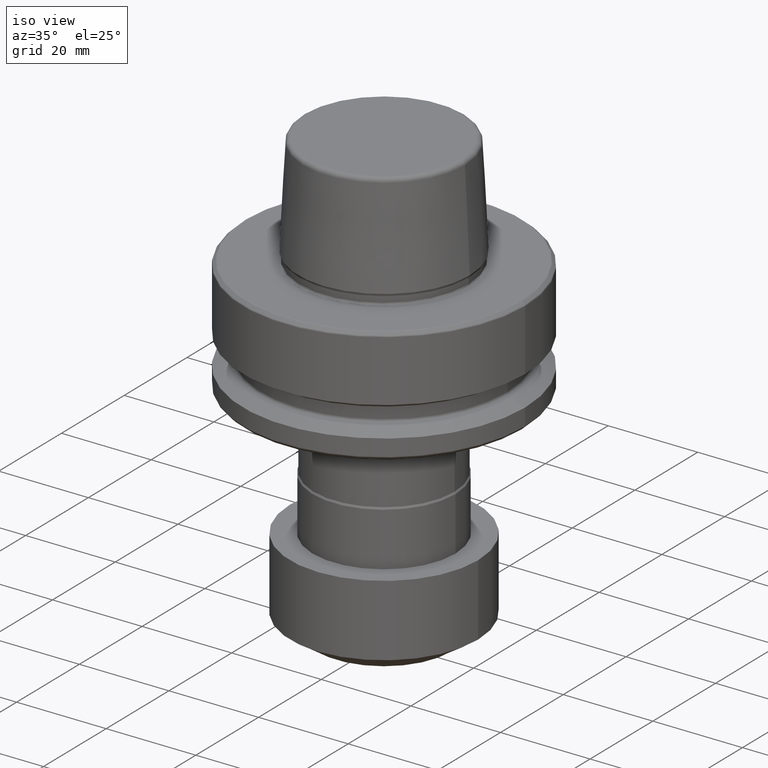
[diagram: clean part render]
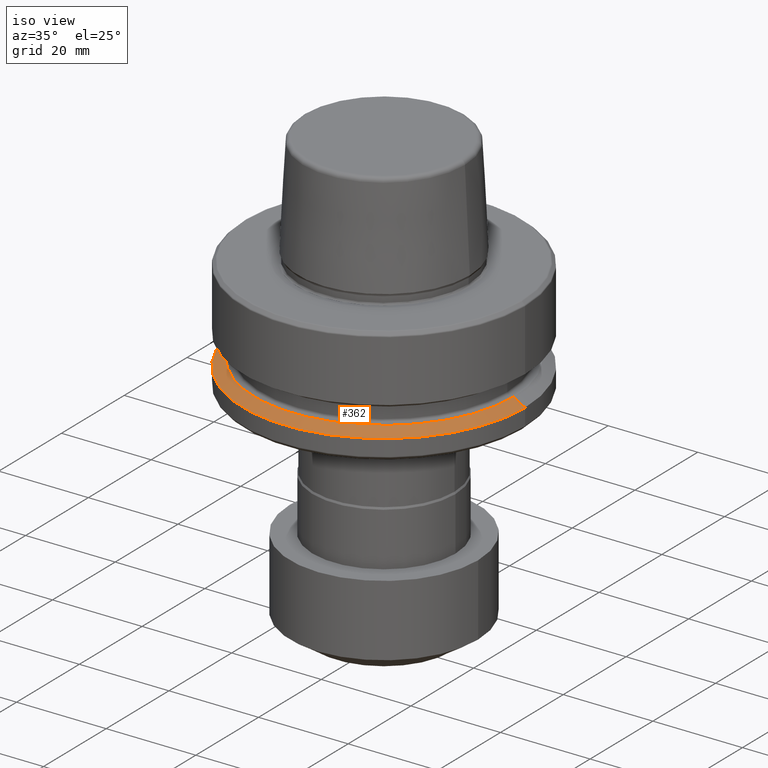
[diagram: same view with one face highlighted and labeled with its STEP entity id]
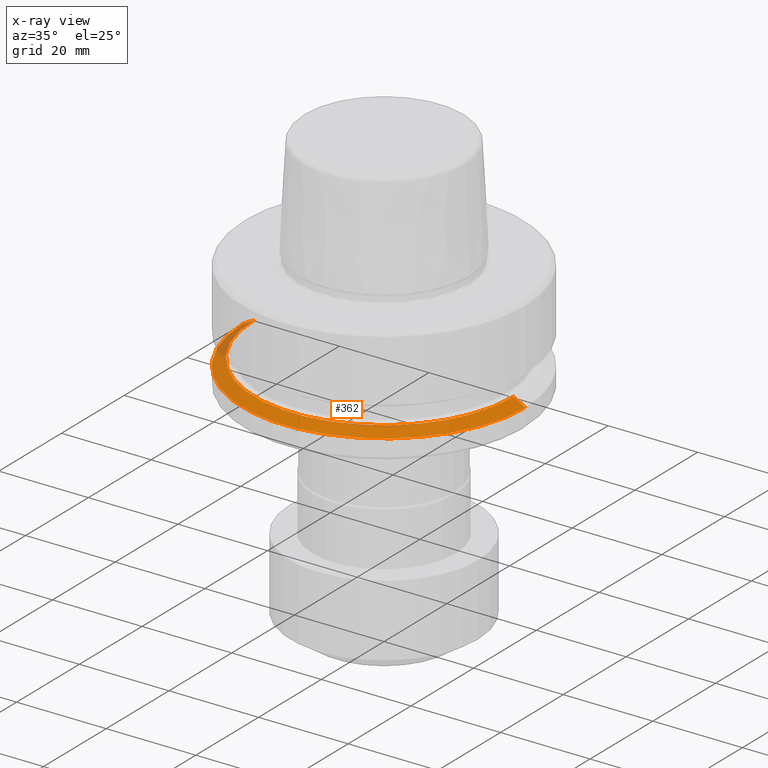
[diagram: x-ray of the same camera — body ghosted, the highlighted face saturated]
A machine part, iso view. The second image highlights one B-rep face of the part: STEP entity #362.
The next image is the same camera in x-ray: the body ghosted, the highlighted face saturated — about 5% of this face is hidden behind the body in this view.
In plain terms, the highlighted conical surface has half-angle 60 deg.
Its self-contained STEP definition (entity closure, byte-faithful):
#18 = DIRECTION ( 'NONE',  ( -0.8660254037844393700, 0.0000000000000000000, -0.4999999999999985000 ) ) ;
#120 = DIRECTION ( 'NONE',  ( -1.000000000000000000, 0.0000000000000000000, 0.0000000000000000000 ) ) ;
#140 = CIRCLE ( 'NONE', #986, 28.94089653438085100 ) ;
#154 = CARTESIAN_POINT ( 'NONE',  ( 0.0000000000000000000, 0.0000000000000000000, -26.37749907475931700 ) ) ;
#214 = EDGE_CURVE ( 'NONE', #559, #1232, #216, .T. ) ;
#216 = LINE ( 'NONE', #334, #1286 ) ;
#311 = CARTESIAN_POINT ( 'NONE',  ( 28.94089653438085100, 3.544237630528423800E-015, -24.90000000000000200 ) ) ;
#334 = CARTESIAN_POINT ( 'NONE',  ( -28.94089653438085100, 0.0000000000000000000, -24.90000000000000200 ) ) ;
#362 = ADVANCED_FACE ( 'NONE', ( #1372 ), #843, .T. ) ;
#367 = EDGE_LOOP ( 'NONE', ( #719, #456, #883, #519 ) ) ;
#433 = CARTESIAN_POINT ( 'NONE',  ( -31.50000000000000000, 3.857637417314162700E-015, -26.37749907475931700 ) ) ;
#456 = ORIENTED_EDGE ( 'NONE', *, *, #993, .F. ) ;
#519 = ORIENTED_EDGE ( 'NONE', *, *, #578, .T. ) ;
#552 = CIRCLE ( 'NONE', #1275, 31.50000000000000000 ) ;
#559 = VERTEX_POINT ( 'NONE', #1121 ) ;
#578 = EDGE_CURVE ( 'NONE', #1232, #1380, #552, .T. ) ;
#655 = CARTESIAN_POINT ( 'NONE',  ( 0.0000000000000000000, 0.0000000000000000000, -24.90000000000000200 ) ) ;
#679 = VECTOR ( 'NONE', #1340, 1000.000000000000100 ) ;
#683 = DIRECTION ( 'NONE',  ( 1.000000000000000000, 0.0000000000000000000, 0.0000000000000000000 ) ) ;
#719 = ORIENTED_EDGE ( 'NONE', *, *, #1213, .F. ) ;
#843 = CONICAL_SURFACE ( 'NONE', #912, 28.94089653438085100, 1.047197551196599400 ) ;
#883 = ORIENTED_EDGE ( 'NONE', *, *, #214, .T. ) ;
#912 = AXIS2_PLACEMENT_3D ( 'NONE', #655, #1496, #120 ) ;
#944 = CARTESIAN_POINT ( 'NONE',  ( 28.94089653438085100, 3.700937523921292900E-015, -24.90000000000000200 ) ) ;
#986 = AXIS2_PLACEMENT_3D ( 'NONE', #1333, #1516, #1017 ) ;
#993 = EDGE_CURVE ( 'NONE', #559, #1358, #140, .T. ) ;
#1017 = DIRECTION ( 'NONE',  ( 1.000000000000000000, 0.0000000000000000000, 0.0000000000000000000 ) ) ;
#1121 = CARTESIAN_POINT ( 'NONE',  ( -28.94089653438085100, 0.0000000000000000000, -24.90000000000000200 ) ) ;
#1128 = DIRECTION ( 'NONE',  ( -0.0000000000000000000, -0.0000000000000000000, 1.000000000000000000 ) ) ;
#1213 = EDGE_CURVE ( 'NONE', #1358, #1380, #1236, .T. ) ;
#1232 = VERTEX_POINT ( 'NONE', #433 ) ;
#1236 = LINE ( 'NONE', #311, #679 ) ;
#1275 = AXIS2_PLACEMENT_3D ( 'NONE', #154, #1128, #683 ) ;
#1286 = VECTOR ( 'NONE', #18, 1000.000000000000100 ) ;
#1333 = CARTESIAN_POINT ( 'NONE',  ( 0.0000000000000000000, 0.0000000000000000000, -24.90000000000000200 ) ) ;
#1340 = DIRECTION ( 'NONE',  ( 0.8660254037844393700, 1.060575238724907800E-016, -0.4999999999999985000 ) ) ;
#1358 = VERTEX_POINT ( 'NONE', #944 ) ;
#1372 = FACE_OUTER_BOUND ( 'NONE', #367, .T. ) ;
#1380 = VERTEX_POINT ( 'NONE', #1427 ) ;
#1427 = CARTESIAN_POINT ( 'NONE',  ( 31.50000000000000000, 0.0000000000000000000, -26.37749907475931700 ) ) ;
#1496 = DIRECTION ( 'NONE',  ( 0.0000000000000000000, 0.0000000000000000000, -1.000000000000000000 ) ) ;
#1516 = DIRECTION ( 'NONE',  ( -0.0000000000000000000, -0.0000000000000000000, 1.000000000000000000 ) ) ;